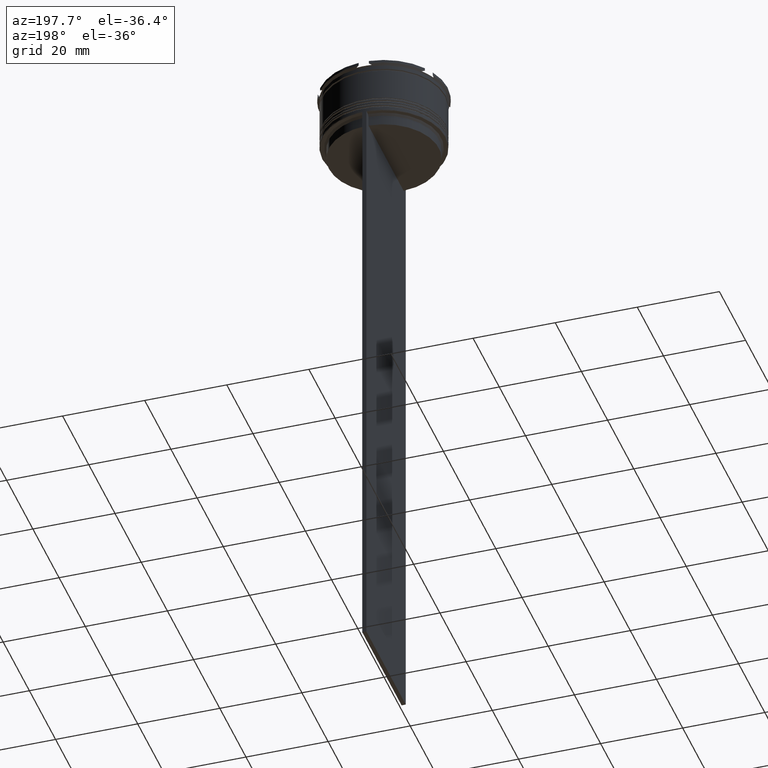
[diagram: clean part render]
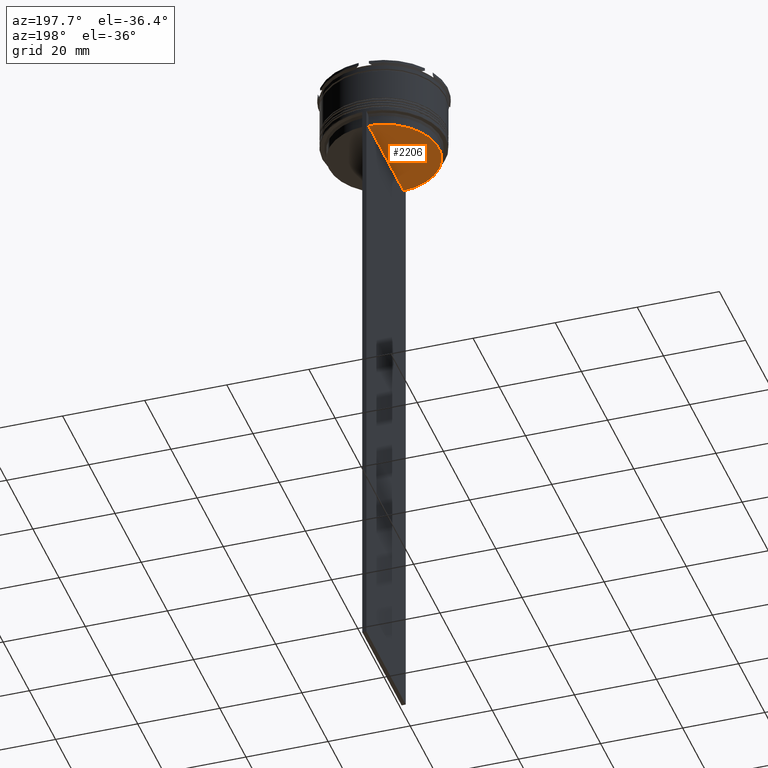
[diagram: same view with one face highlighted and labeled with its STEP entity id]
A machine part, auxiliary view. The second image highlights one B-rep face of the part: STEP entity #2206.
In plain terms, the highlighted planar face has unit normal (0, -0, 1).
Its self-contained STEP definition (entity closure, byte-faithful):
#102 = DIRECTION ( 'NONE',  ( 0.000000000000000000, -0.000000000000000000, 1.000000000000000000 ) ) ;
#177 = DIRECTION ( 'NONE',  ( 1.000000000000000000, 0.000000000000000000, 0.000000000000000000 ) ) ;
#292 = CARTESIAN_POINT ( 'NONE',  ( -0.4999999999999998890, 13.40000000000000391, -17.00000000000000000 ) ) ;
#485 = VERTEX_POINT ( 'NONE', #2550 ) ;
#495 = LINE ( 'NONE', #292, #840 ) ;
#502 = EDGE_CURVE ( 'NONE', #2452, #485, #495, .T. ) ;
#607 = CIRCLE ( 'NONE', #1915, 13.40000000000000391 ) ;
#728 = FACE_OUTER_BOUND ( 'NONE', #930, .T. ) ;
#840 = VECTOR ( 'NONE', #954, 1000.000000000000000 ) ;
#930 = EDGE_LOOP ( 'NONE', ( #1709, #1521 ) ) ;
#954 = DIRECTION ( 'NONE',  ( 0.000000000000000000, -1.000000000000000000, 0.000000000000000000 ) ) ;
#1092 = CARTESIAN_POINT ( 'NONE',  ( 0.000000000000000000, 0.000000000000000000, -17.00000000000000000 ) ) ;
#1357 = AXIS2_PLACEMENT_3D ( 'NONE', #2531, #102, #2515 ) ;
#1521 = ORIENTED_EDGE ( 'NONE', *, *, #502, .T. ) ;
#1619 = PLANE ( 'NONE',  #1357 ) ;
#1675 = EDGE_CURVE ( 'NONE', #2452, #485, #607, .T. ) ;
#1709 = ORIENTED_EDGE ( 'NONE', *, *, #1675, .F. ) ;
#1915 = AXIS2_PLACEMENT_3D ( 'NONE', #1092, #2835, #177 ) ;
#2206 = ADVANCED_FACE ( 'NONE', ( #728 ), #1619, .F. ) ;
#2228 = CARTESIAN_POINT ( 'NONE',  ( -0.4999999999999998890, 13.39066839257847086, -17.00000000000000000 ) ) ;
#2452 = VERTEX_POINT ( 'NONE', #2228 ) ;
#2515 = DIRECTION ( 'NONE',  ( 1.000000000000000000, 0.000000000000000000, 0.000000000000000000 ) ) ;
#2531 = CARTESIAN_POINT ( 'NONE',  ( 0.000000000000000000, 13.40000000000000391, -17.00000000000000000 ) ) ;
#2550 = CARTESIAN_POINT ( 'NONE',  ( -0.4999999999999998890, -13.39066839257847086, -17.00000000000000000 ) ) ;
#2835 = DIRECTION ( 'NONE',  ( -0.000000000000000000, -0.000000000000000000, 1.000000000000000000 ) ) ;